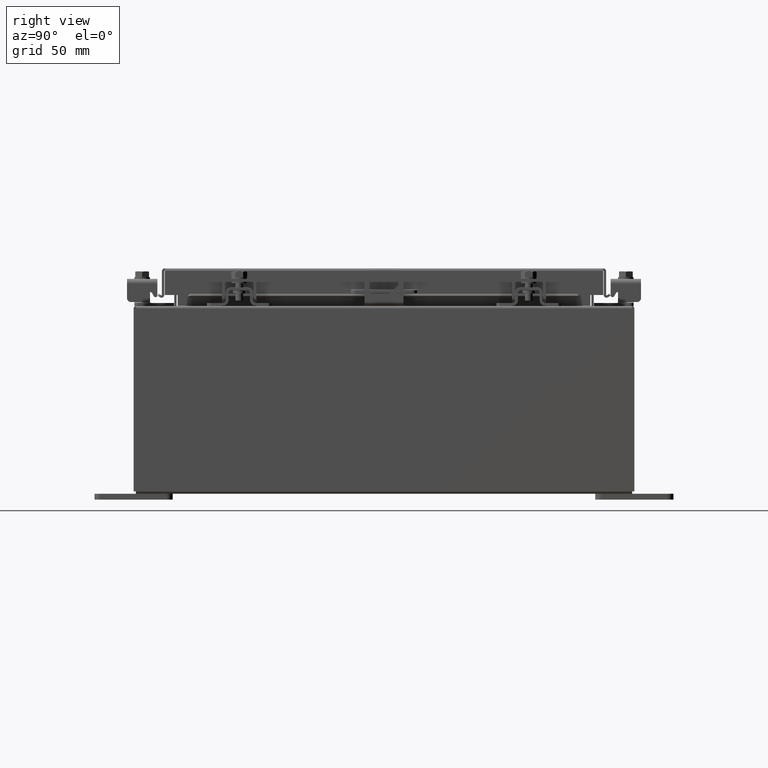
[diagram: clean part render]
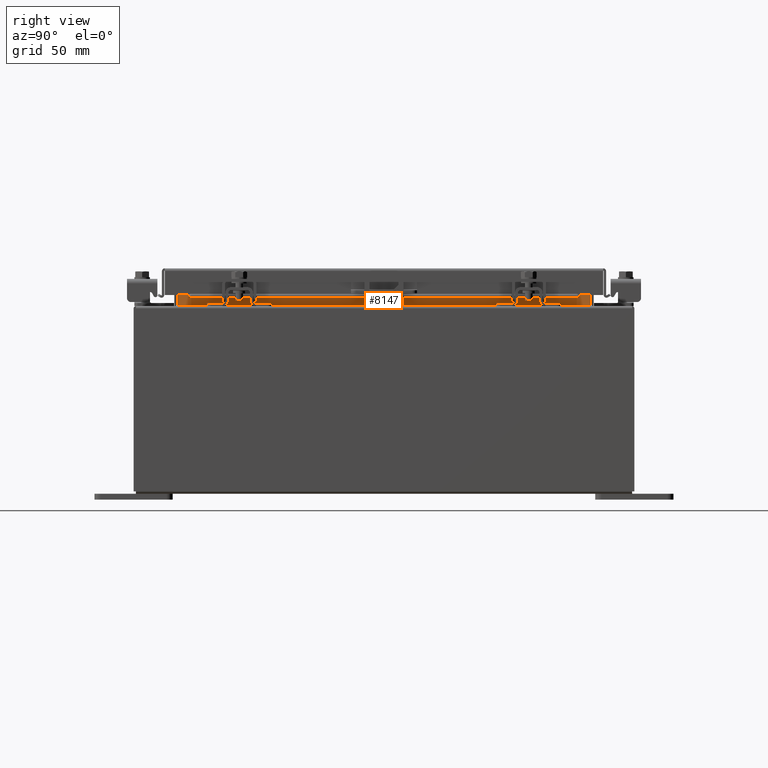
[diagram: same view with one face highlighted and labeled with its STEP entity id]
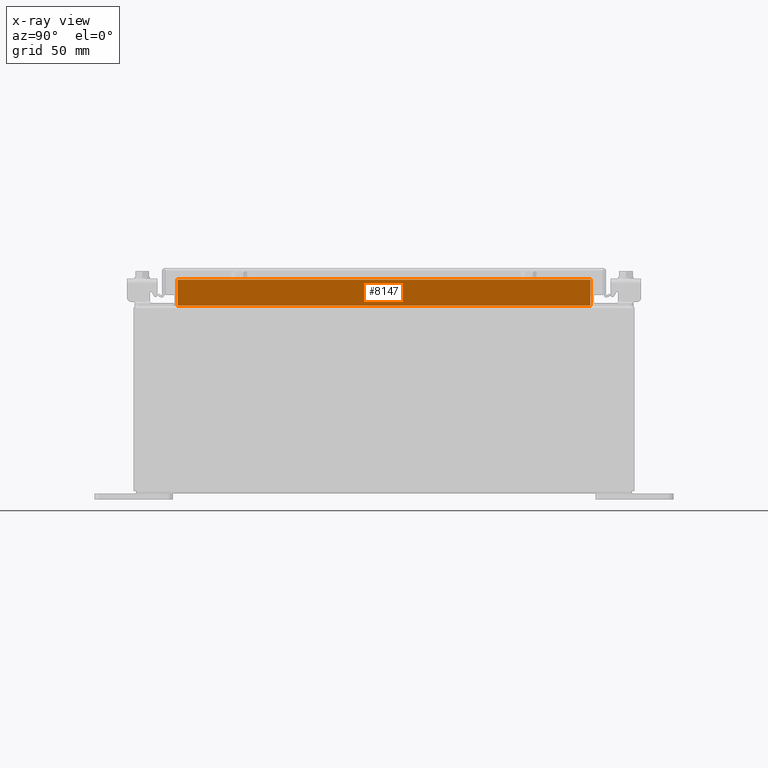
[diagram: x-ray of the same camera — body ghosted, the highlighted face saturated]
A machine part, right view. The second image highlights one B-rep face of the part: STEP entity #8147.
The next image is the same camera in x-ray: the body ghosted, the highlighted face saturated — about 0% of this face is hidden behind the body in this view.
In plain terms, the highlighted planar face has unit normal (1, 0, -0).
Its self-contained STEP definition (entity closure, byte-faithful):
#2228 = CARTESIAN_POINT ( 'NONE',  ( 4.699700000000024000, -6.593750000000002700, 6.762900000000009900 ) ) ;
#4125 = CARTESIAN_POINT ( 'NONE',  ( 4.699700000000020400, 6.593750000000000000, 5.925300000000009800 ) ) ;
#4631 = LINE ( 'NONE', #6986, #25368 ) ;
#5494 = LINE ( 'NONE', #4125, #25606 ) ;
#6150 = DIRECTION ( 'NONE',  ( -3.542869979895294000E-015, -0.0000000000000000000, -1.000000000000000000 ) ) ;
#6769 = CARTESIAN_POINT ( 'NONE',  ( 4.699700000000000000, 0.0000000000000000000, -1.665042604451391200E-014 ) ) ;
#6986 = CARTESIAN_POINT ( 'NONE',  ( 4.699700000000019500, 6.593750000000000000, 5.938300000000010600 ) ) ;
#8147 = ADVANCED_FACE ( 'NONE', ( #15458 ), #18798, .T. ) ;
#8773 = DIRECTION ( 'NONE',  ( 1.000000000000000000, 0.0000000000000000000, -3.542869979895294000E-015 ) ) ;
#8821 = CARTESIAN_POINT ( 'NONE',  ( 4.699700000000024000, 6.593750000000000000, 6.762900000000009900 ) ) ;
#8841 = VERTEX_POINT ( 'NONE', #10271 ) ;
#9012 = DIRECTION ( 'NONE',  ( 3.542869979895298400E-015, -0.0000000000000000000, 1.000000000000000000 ) ) ;
#10271 = CARTESIAN_POINT ( 'NONE',  ( 4.699700000000023100, -6.593750000000000900, 6.762900000000009900 ) ) ;
#11384 = AXIS2_PLACEMENT_3D ( 'NONE', #6769, #8773, #22837 ) ;
#12690 = CARTESIAN_POINT ( 'NONE',  ( 4.699700000000020400, -6.593750000000000900, 5.938300000000010600 ) ) ;
#13021 = VERTEX_POINT ( 'NONE', #8821 ) ;
#13589 = EDGE_CURVE ( 'NONE', #15004, #8841, #15031, .T. ) ;
#14408 = VECTOR ( 'NONE', #9012, 39.37007874015748100 ) ;
#14854 = EDGE_CURVE ( 'NONE', #8841, #13021, #17139, .T. ) ;
#15004 = VERTEX_POINT ( 'NONE', #12690 ) ;
#15031 = LINE ( 'NONE', #18960, #14408 ) ;
#15254 = ORIENTED_EDGE ( 'NONE', *, *, #22515, .F. ) ;
#15458 = FACE_OUTER_BOUND ( 'NONE', #21427, .T. ) ;
#16392 = EDGE_CURVE ( 'NONE', #13021, #26083, #5494, .T. ) ;
#17139 = LINE ( 'NONE', #2228, #21863 ) ;
#17368 = ORIENTED_EDGE ( 'NONE', *, *, #16392, .F. ) ;
#18798 = PLANE ( 'NONE',  #11384 ) ;
#18960 = CARTESIAN_POINT ( 'NONE',  ( 4.699700000000024000, -6.593750000000000900, 6.850600000000010700 ) ) ;
#20237 = ORIENTED_EDGE ( 'NONE', *, *, #14854, .F. ) ;
#21427 = EDGE_LOOP ( 'NONE', ( #17368, #20237, #22247, #15254 ) ) ;
#21863 = VECTOR ( 'NONE', #24293, 39.37007874015748100 ) ;
#22247 = ORIENTED_EDGE ( 'NONE', *, *, #13589, .F. ) ;
#22515 = EDGE_CURVE ( 'NONE', #26083, #15004, #4631, .T. ) ;
#22837 = DIRECTION ( 'NONE',  ( -3.542869979895294000E-015, 0.0000000000000000000, -1.000000000000000000 ) ) ;
#23601 = CARTESIAN_POINT ( 'NONE',  ( 4.699700000000020400, 6.593750000000000000, 5.938300000000010600 ) ) ;
#24293 = DIRECTION ( 'NONE',  ( 0.0000000000000000000, 1.000000000000000000, 0.0000000000000000000 ) ) ;
#25097 = DIRECTION ( 'NONE',  ( 8.286174009218617400E-017, -1.000000000000000000, 8.286174009218617400E-017 ) ) ;
#25368 = VECTOR ( 'NONE', #25097, 39.37007874015748100 ) ;
#25606 = VECTOR ( 'NONE', #6150, 39.37007874015748100 ) ;
#26083 = VERTEX_POINT ( 'NONE', #23601 ) ;